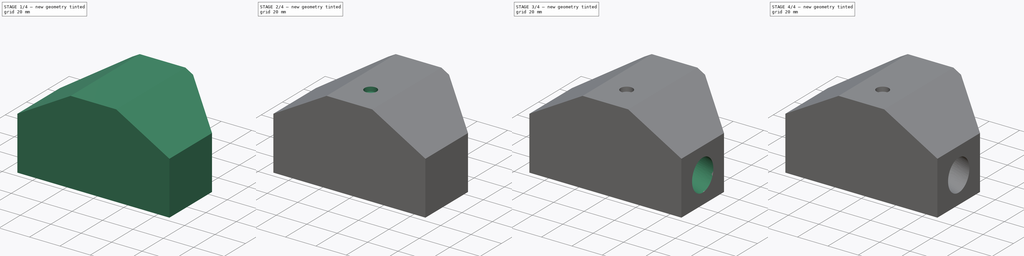
[diagram: build sequence overview — one tinted view per stage of 4, left to right]
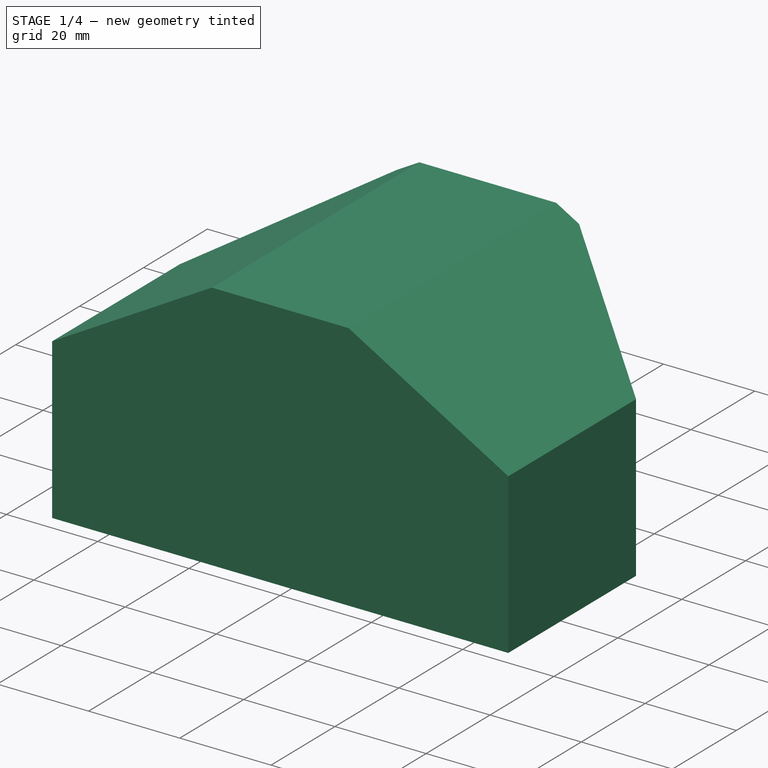
[diagram: stage 1 of 4 — iso view after this stage's code; geometry added in this stage tinted green]
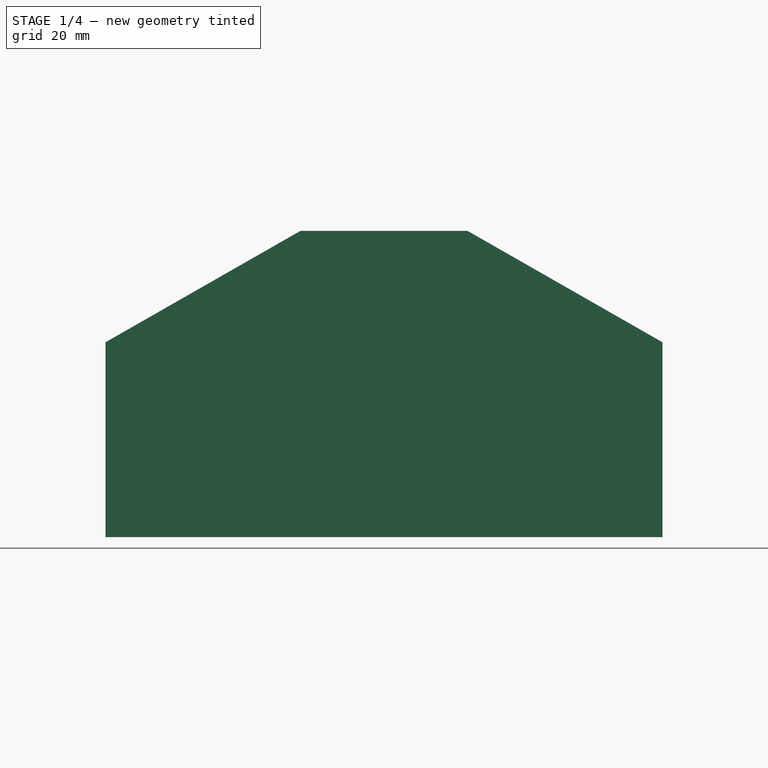
[diagram: stage 1 of 4 — front view after this stage's code; geometry added in this stage tinted green]
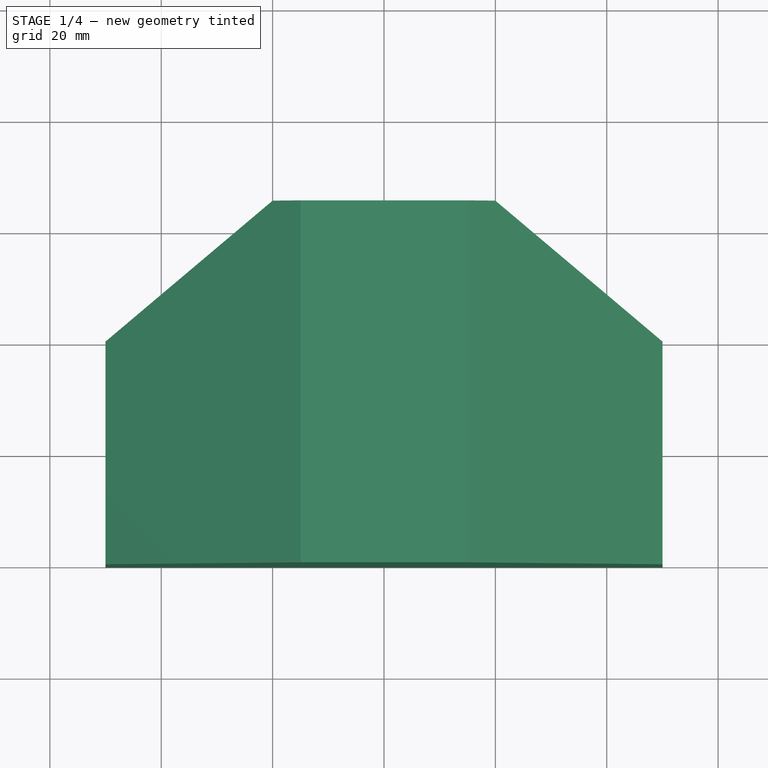
[diagram: stage 1 of 4 — top view after this stage's code; geometry added in this stage tinted green]
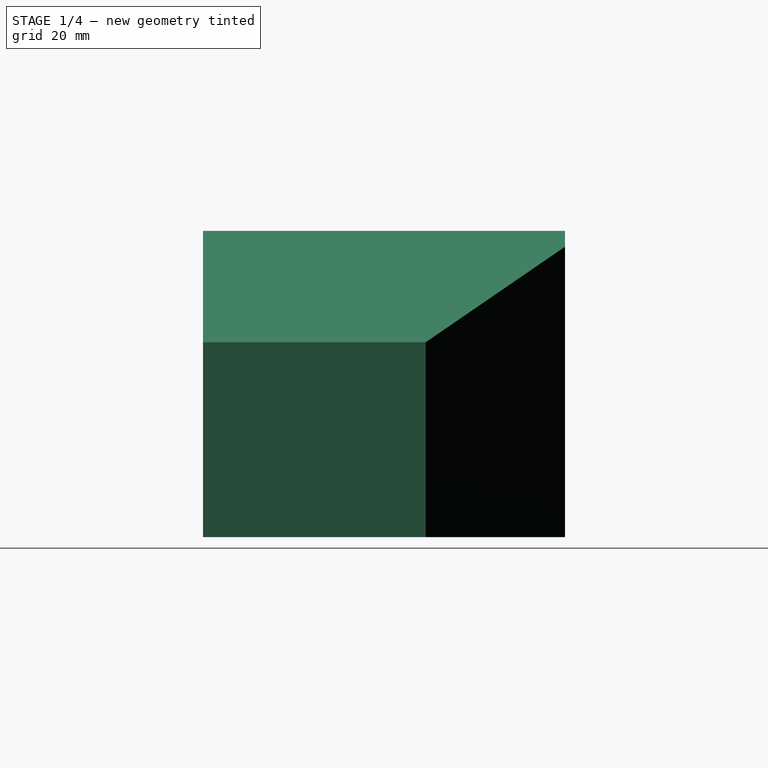
[diagram: stage 1 of 4 — right view after this stage's code; geometry added in this stage tinted green]
FCSTD DOCUMENT  (FreeCAD 0.17R13541 (Git))
Label: BabyGymJointHolder
License: All rights reserved
LicenseURL: http://en.wikipedia.org/wiki/All_rights_reserved
objects: Sketcher::SketchObject×8, PartDesign::Body×3, PartDesign::Pad×2, PartDesign::Pocket×2, Part::FeaturePython×2, PartDesign::AdditivePipe×1, PartDesign::Hole×1, Part::Extrusion×1, PartDesign::Boolean×1
note: 27 computed .brp shape members not serialized (recipe doc carries the construction recipe); baked Part::Feature solids carry a one-line shape summary decoded from their .brp

FEATURE [PartDesign::Body] Body001  label="Legs"
  Group = -> [Sketch002,Sketch003,AdditivePipe]
  Origin = -> Origin001
  Tip = -> AdditivePipe
FEATURE [Sketcher::SketchObject] Sketch004  label="SketchMain"
  AttachmentOffset = pos=(0,0,20) rot=(0,0,1;0rad)
  MapMode = 5
  Placement = pos=(0,-20,-2e-12) rot=(1,0,0;1.5708rad)
  Support = -> [XZ_Plane]
  sketch-geometry (8):
    g0: LineSegment StartX=-50 StartY=10 StartZ=0 EndX=-15 EndY=30 EndZ=0
    g1: LineSegment StartX=-15 StartY=30 StartZ=0 EndX=15 EndY=30 EndZ=0
    g2: LineSegment StartX=15 StartY=30 StartZ=0 EndX=50 EndY=10 EndZ=0
    g3: LineSegment StartX=50 StartY=10 StartZ=0 EndX=50 EndY=-25 EndZ=0
    g4: LineSegment StartX=50 StartY=-25 StartZ=0 EndX=15 EndY=-25 EndZ=0
    g5: LineSegment StartX=15 StartY=-25 StartZ=0 EndX=-15 EndY=-25 EndZ=0
    g6: LineSegment StartX=-15 StartY=-25 StartZ=0 EndX=-50 EndY=-25 EndZ=0
    g7: LineSegment StartX=-50 StartY=-25 StartZ=0 EndX=-50 EndY=10 EndZ=0
  constraints (23):
    c: Coincident(g0,g1)
    c: Horizontal(g1)
    c: Coincident(g1,g2)
    c: Coincident(g2,g3)
    c: Vertical(g3)
    c: Coincident(g3,g4)
    c: Coincident(g4,g5)
    c: Horizontal(g5)
    c: Coincident(g5,g6)
    c: Coincident(g6,g7)
    c: Coincident(g7,g0)
    c: Vertical(g7)
    c: DistanceX(g6,g3) = 100  'MainWidth'
    c: DistanceY(g3,g1) = 55
    c: Symmetric(g3,g6,g-2)
    c: Equal(g3,g7)
    c: Equal(g0,g2)
    c: Equal(g6,g4)
    c: DistanceY(g-1,g1) = 30
    c: DistanceY(g3,g3) = 35
    c: DistanceX(g1,g1) = 30
    c: Equal(g5,g1)
    c: DistanceY(g4,g1) = 55
FEATURE [PartDesign::Pad] Pad001  label="PadMain"
  Length = 65
  Length2 = 100
  Placement = pos=(0,0,0) rot=(1,0,0;1.5708rad)
  Profile = -> Sketch004
  Reversed = true
  Type = 0
FEATURE [Sketcher::SketchObject] Sketch005
  MapMode = 5
  Support = -> [XY_Plane]
  expr: Constraints[16] = PadMain.Length + SketchMain.Placement.Base.y
  expr: Constraints[15] = SketchMain.Constraints.MainWidth / 2
  sketch-geometry (6):
    g0: LineSegment StartX=-50 StartY=20 StartZ=0 EndX=-20 EndY=45 EndZ=0
    g1: LineSegment StartX=-20 StartY=45 StartZ=0 EndX=-50 EndY=45 EndZ=0
    g2: LineSegment StartX=-50 StartY=45 StartZ=0 EndX=-50 EndY=20 EndZ=0
    g3: LineSegment StartX=20 StartY=45 StartZ=0 EndX=50 EndY=45 EndZ=0
    g4: LineSegment StartX=50 StartY=45 StartZ=0 EndX=50 EndY=20 EndZ=0
    g5: LineSegment StartX=50 StartY=20 StartZ=0 EndX=20 EndY=45 EndZ=0
  constraints (17):
    c: Coincident(g0,g1)
    c: Horizontal(g1)
    c: Coincident(g1,g2)
    c: Coincident(g2,g0)
    c: Vertical(g2)
    c: Horizontal(g3)
    c: Coincident(g3,g4)
    c: Vertical(g4)
    c: Coincident(g4,g5)
    c: Coincident(g5,g3)
    c: DistanceY(g-1,g0) = 20
    c: DistanceX(g0,g-1) = 20
    c: Symmetric(g0,g3,g-2)
    c: Equal(g1,g3)
    c: Equal(g2,g4)
    c: DistanceX(g0,g-1) = 50
    c: DistanceY(g-1,g1) = 45
FEATURE [PartDesign::Pocket] Pocket
  BaseFeature = -> Pad001
  Length = 5
  Length2 = 100
  Midplane = true
  Placement = pos=(0,0,0) rot=(1,0,0;1.5708rad)
  Profile = -> Sketch005
  Type = 1
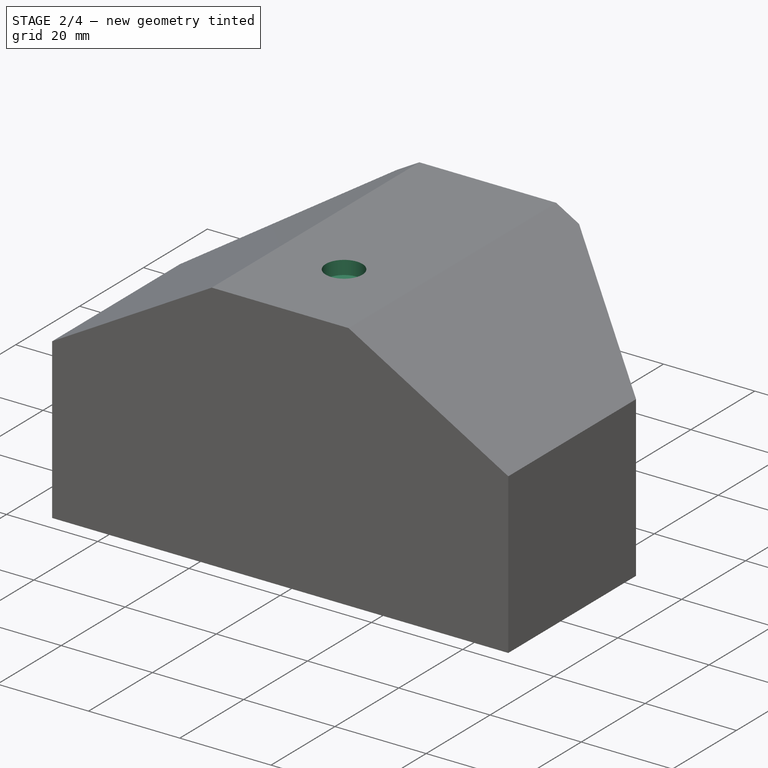
[diagram: stage 2 of 4 — iso view after this stage's code; geometry added in this stage tinted green]
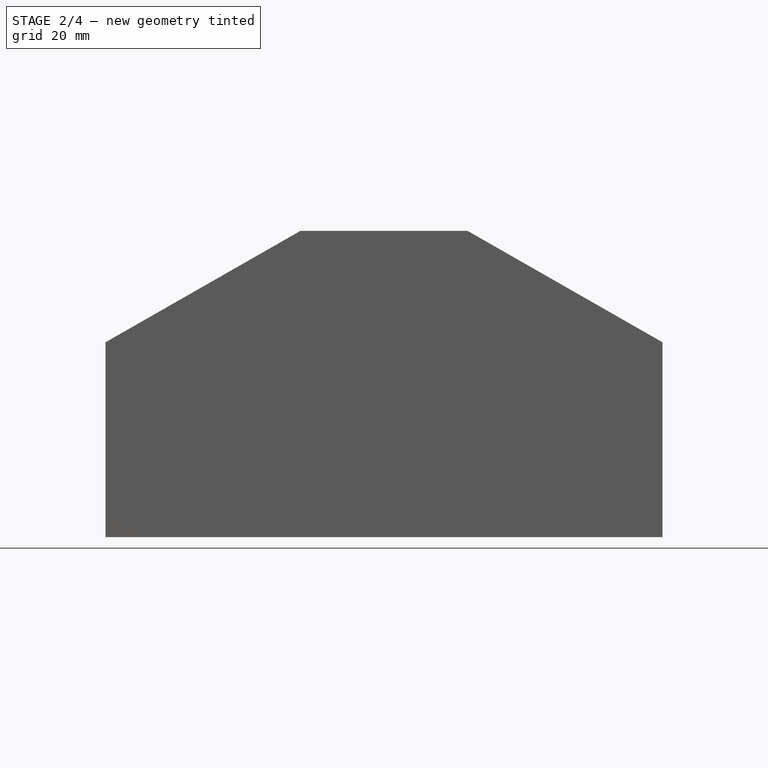
[diagram: stage 2 of 4 — front view after this stage's code; geometry added in this stage tinted green]
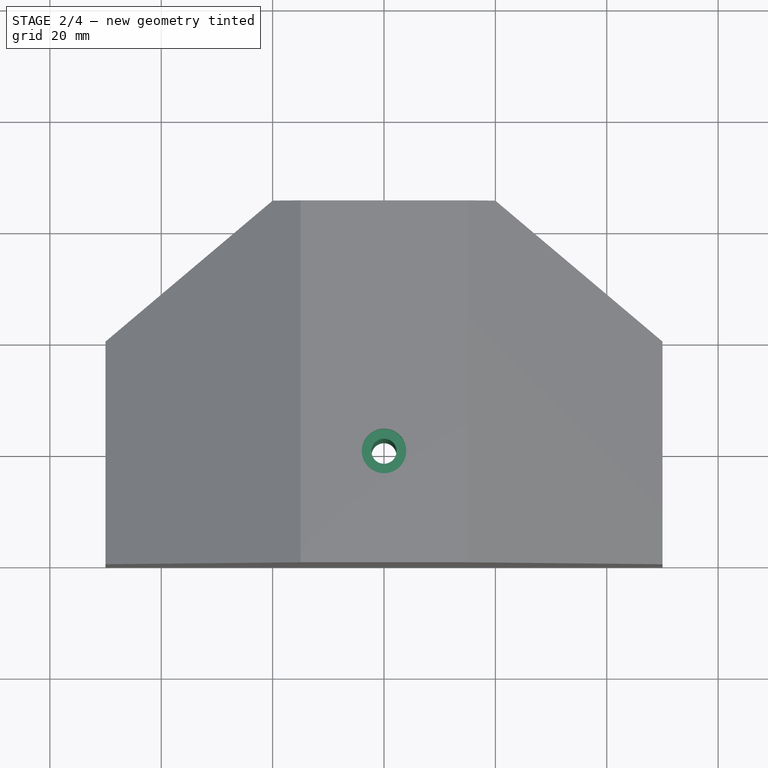
[diagram: stage 2 of 4 — top view after this stage's code; geometry added in this stage tinted green]
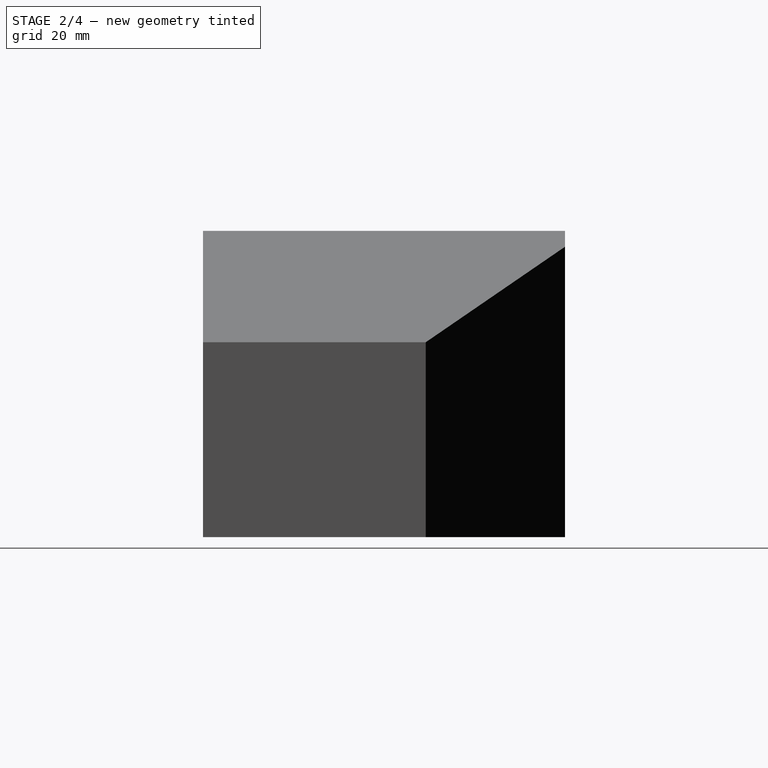
[diagram: stage 2 of 4 — right view after this stage's code; geometry added in this stage tinted green]
FEATURE [Sketcher::SketchObject] Sketch006
  MapMode = 5
  Placement = pos=(0,0,30) rot=(0,0,1;3.14159rad)
  Support = -> [Pocket]
  sketch-geometry (1):
    g0: Circle CenterX=0 CenterY=0 CenterZ=0 NormalX=0 NormalY=0 NormalZ=1 AngleXU=0 Radius=2.79854
  constraints (1):
    c: Coincident(g0,g-1)
FEATURE [PartDesign::Hole] Hole
  BaseFeature = -> Pocket
  Depth = 22
  DepthType = 1
  Diameter = 4.5
  DrillPoint = 0
  DrillPointAngle = 118
  HoleCutCountersinkAngle = 90
  HoleCutDepth = 3
  HoleCutDiameter = 8
  HoleCutType = 1
  ModelActualThread = false
  Placement = pos=(0,0,0) rot=(1,0,0;1.5708rad)
  Profile = -> Sketch006
  Tapered = false
  TaperedAngle = 90
  ThreadAngle = 0
  ThreadClass = 0
  ThreadCutOffInner = 0
  ThreadCutOffOuter = 0
  ThreadDirection = 0
  ThreadFit = 0
  ThreadPitch = 0
  ThreadSize = 0
  ThreadType = 0
  Threaded = false
FEATURE [Sketcher::SketchObject] Sketch007
  MapMode = 5
  Placement = pos=(0,0,-25) rot=(1,0,0;3.14159rad)
  Support = -> [Hole]
  sketch-geometry (7):
    g0: LineSegment StartX=2.07846 StartY=-3.6 StartZ=0 EndX=4.15692 EndY=0 EndZ=0
    g1: LineSegment StartX=4.15692 StartY=0 StartZ=0 EndX=2.07846 EndY=3.6 EndZ=0
    g2: LineSegment StartX=2.07846 StartY=3.6 StartZ=0 EndX=-2.07846 EndY=3.6 EndZ=0
    g3: LineSegment StartX=-2.07846 StartY=3.6 StartZ=0 EndX=-4.15692 EndY=0 EndZ=0
    g4: LineSegment StartX=-4.15692 StartY=0 StartZ=0 EndX=-2.07846 EndY=-3.6 EndZ=0
    g5: LineSegment StartX=-2.07846 StartY=-3.6 StartZ=0 EndX=2.07846 EndY=-3.6 EndZ=0
    g6: Circle [constr] CenterX=0 CenterY=0 CenterZ=0 NormalX=0 NormalY=0 NormalZ=1 AngleXU=0 Radius=4.15692
  constraints (16):
    c: Coincident(g0,g1)
    c: Coincident(g1,g2)
    c: Coincident(g2,g3)
    c: Coincident(g3,g4)
    c: Coincident(g4,g5)
    c: Coincident(g5,g0)
    c: Equal(g0, g1-g5) x5
    c: PointOnObject(g0,g6)
    c: PointOnObject(g1,g6)
    c: PointOnObject(g2,g6)
    c: PointOnObject(g3,g6)
    c: PointOnObject(g4,g6)
    c: PointOnObject(g5,g6)
    c: Coincident(g6,g-1)
    c: Horizontal(g2)
    c: DistanceY(g4,g2) = 7.2
FEATURE [PartDesign::Pocket] Pocket001
  BaseFeature = -> Hole
  Length = 5
  Length2 = 100
  Placement = pos=(0,0,0) rot=(1,0,0;1.5708rad)
  Profile = -> Sketch007
  Type = 0
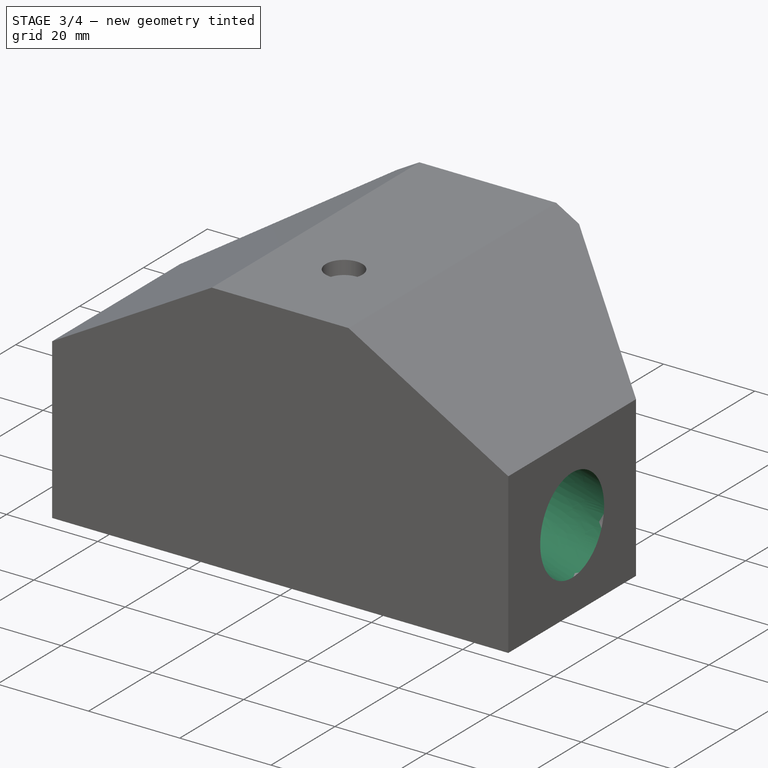
[diagram: stage 3 of 4 — iso view after this stage's code; geometry added in this stage tinted green]
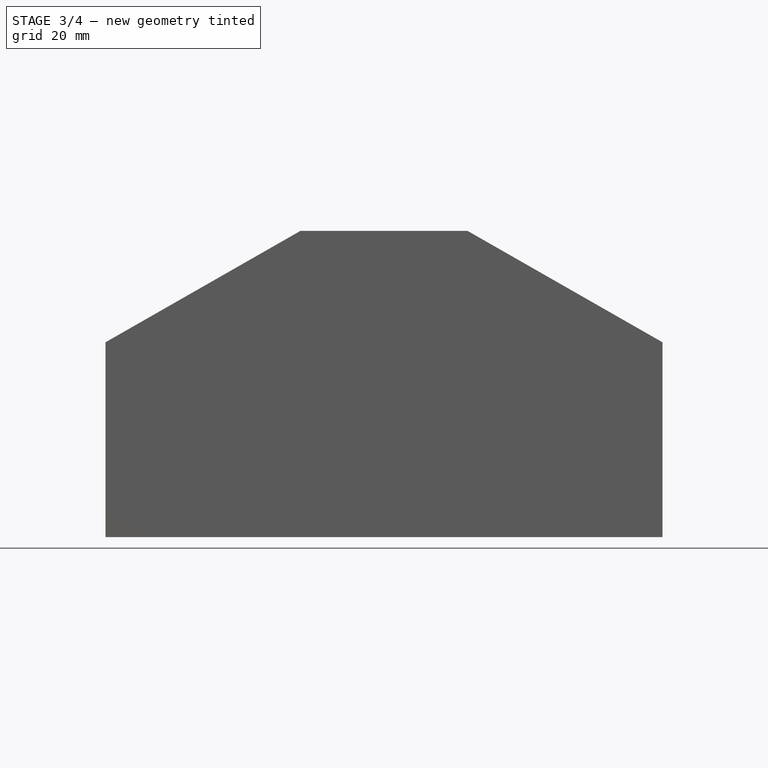
[diagram: stage 3 of 4 — front view after this stage's code; geometry added in this stage tinted green]
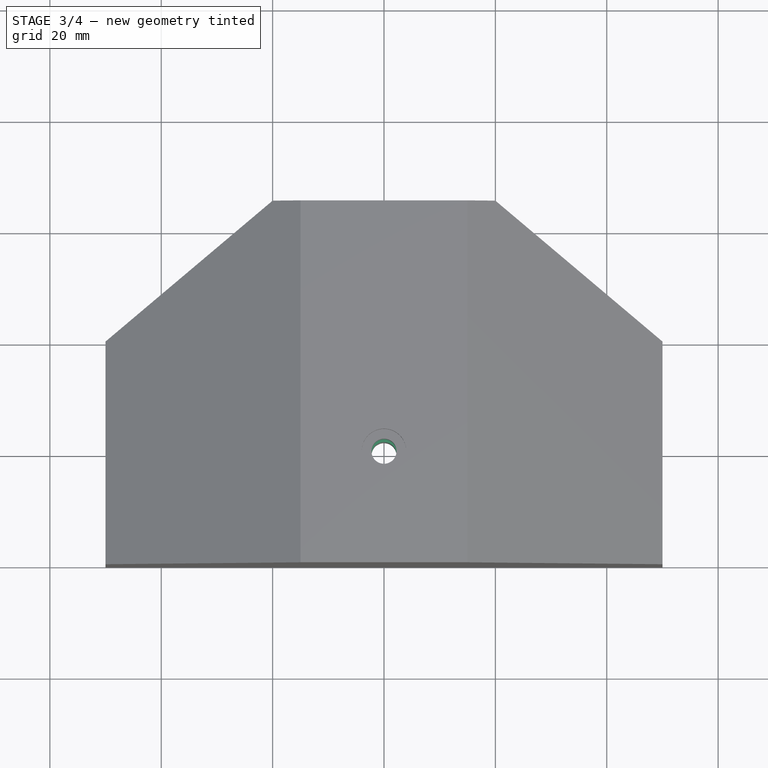
[diagram: stage 3 of 4 — top view after this stage's code; geometry added in this stage tinted green]
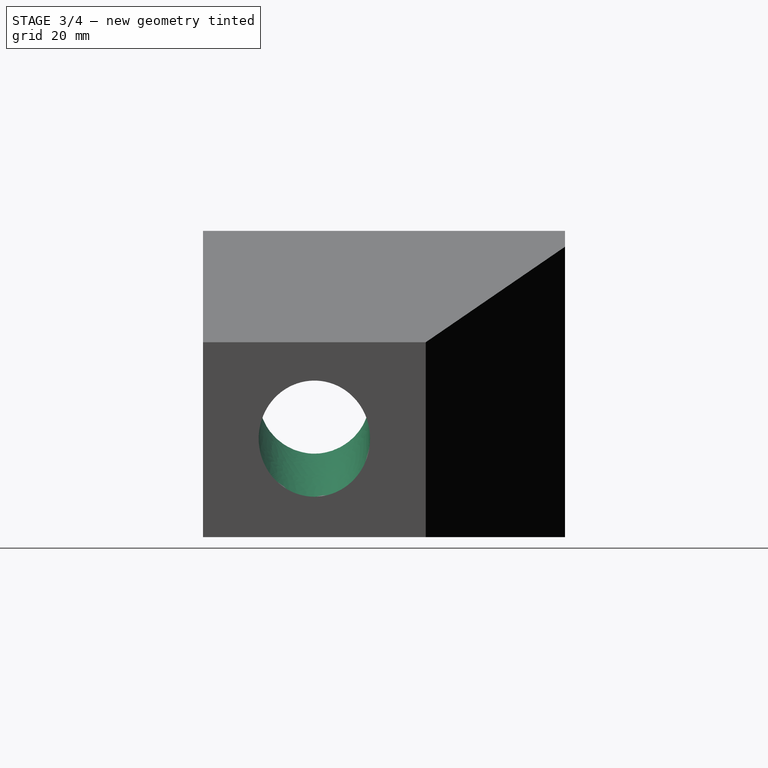
[diagram: stage 3 of 4 — right view after this stage's code; geometry added in this stage tinted green]
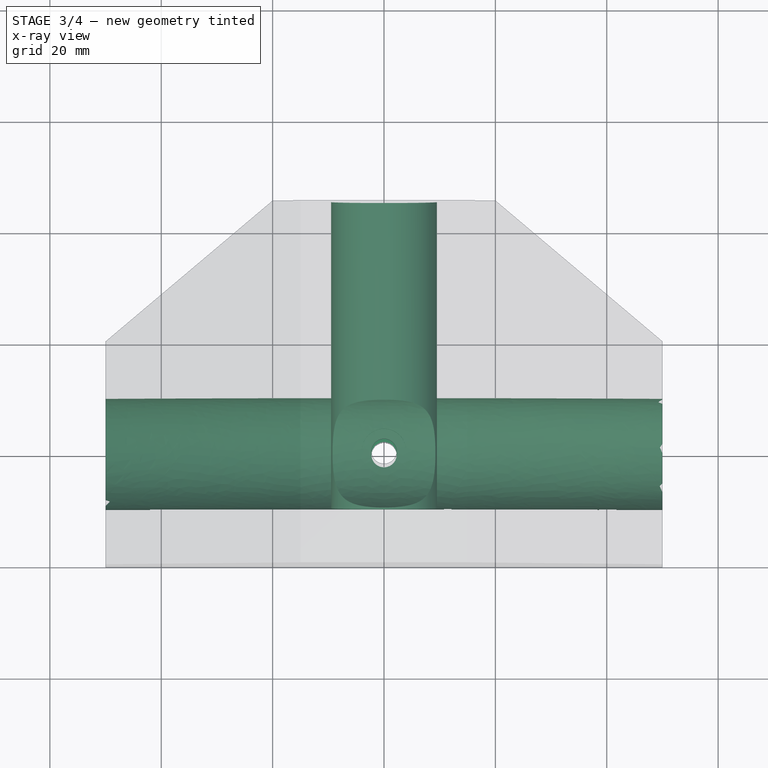
[diagram: stage 3 of 4 — x-ray composite at the top view; earlier geometry ghosted, this stage's added geometry solid]
FEATURE [Sketcher::SketchObject] Sketch002  label="legSketch"
  MapMode = 5
  Placement = pos=(0,0,0) rot=(0.57735,0.57735,0.57735;2.0944rad)
  Support = -> [YZ_Plane001]
  sketch-geometry (1):
    g0: Circle CenterX=0 CenterY=0 CenterZ=0 NormalX=0 NormalY=0 NormalZ=1 AngleXU=0 Radius=10
  constraints (2):
    c: Coincident(g0,g-1)
    c: Radius(g0) = 10  'lrad'
FEATURE [Sketcher::SketchObject] Sketch
  MapMode = 5
  Placement = pos=(0,0,0) rot=(1,0,0;1.5708rad)
  Support = -> [XZ_Plane002]
  sketch-geometry (1):
    g0: Circle CenterX=0 CenterY=12 CenterZ=0 NormalX=0 NormalY=0 NormalZ=1 AngleXU=0 Radius=9.5
  constraints (3):
    c: PointOnObject(g0,g-2)
    c: DistanceY(g-1,g0) = 12
    c: Radius(g0) = 9.5  'barRad'
FEATURE [PartDesign::Pad] Pad
  Length = 100
  Length2 = 100
  Placement = pos=(0,0,0) rot=(1,0,0;1.5708rad)
  Profile = -> Sketch
  Reversed = true
  Type = 0
FEATURE [PartDesign::Body] Body002  label="bar"
  Group = -> [Sketch,Pad]
  Origin = -> Origin002
  Placement = pos=(0,-10,0) rot=(0,0,1;0rad)
  Tip = -> Pad
  expr: Placement.Base.y = -legSketch.Constraints.lrad
FEATURE [Sketcher::SketchObject] Sketch003
  MapMode = 5
  Placement = pos=(0,0,0) rot=(1,0,0;1.5708rad)
  Support = -> [XZ_Plane001]
  sketch-geometry (5):
    g0: ArcOfEllipse CenterX=0 CenterY=-470 CenterZ=0 NormalX=0 NormalY=0 NormalZ=1 MajorRadius=470 MinorRadius=285 AngleXU=1.5708 StartAngle=6.01689 EndAngle=6.54948
    g1: LineSegment [constr] StartX=0 StartY=0 StartZ=0 EndX=0 EndY=-940 EndZ=0
    g2: LineSegment [constr] StartX=-285 StartY=-470 StartZ=0 EndX=285 EndY=-470 EndZ=0
    g3: GeomPoint X=0 Y=-96.2688 Z=0
    g4: GeomPoint X=0 Y=-843.731 Z=0
  constraints (7):
    c: InternalAlignment(g1-g4 -> g0) x4
    c: Horizontal(g0,g0)
    c: Coincident(g1,g-1)
    c: Horizontal(g2,g2)
    c: DistanceX(g2,g2) = 570
    c: DistanceY(g0,g-1) = 470
    c: DistanceX(g0,g0) = 150
FEATURE [PartDesign::AdditivePipe] AdditivePipe
  AuxilleryCurvelinear = true
  AuxillerySpineTangent = false
  Binormal = (0,0,0)
  Mode = 0
  Placement = pos=(0,0,0) rot=(0.57735,0.57735,0.57735;2.0944rad)
  Profile = -> Sketch002
  Spine = -> Sketch003 [Edge1]
  SpineTangent = false
  Transformation = 0
  Transition = 0
FEATURE [Sketcher::SketchObject] Sketch008
  MapMode = 5
  Placement = pos=(0,0,0) rot=(1,0,0;1.5708rad)
  Support = -> [XZ_Plane]
  sketch-geometry (5):
    g0: ArcOfEllipse CenterX=0 CenterY=-470 CenterZ=0 NormalX=0 NormalY=0 NormalZ=1 MajorRadius=470 MinorRadius=285 AngleXU=1.5708 StartAngle=6.01689 EndAngle=6.54948
    g1: LineSegment [constr] StartX=0 StartY=0 StartZ=0 EndX=0 EndY=-940 EndZ=0
    g2: LineSegment [constr] StartX=-285 StartY=-470 StartZ=0 EndX=285 EndY=-470 EndZ=0
    g3: GeomPoint X=0 Y=-96.2688 Z=0
    g4: GeomPoint X=0 Y=-843.731 Z=0
  constraints (7):
    c: InternalAlignment(g1-g4 -> g0) x4
    c: Horizontal(g0,g0)
    c: Coincident(g1,g-1)
    c: Horizontal(g2,g2)
    c: DistanceX(g2,g2) = 570
    c: DistanceY(g0,g-1) = 470
    c: DistanceX(g0,g0) = 150
FEATURE [Part::Extrusion] Extrude
  Base = -> Sketch008
  Dir = (0,-1,0)
  DirMode = 2
  FaceMakerClass = Part::FaceMakerBullseye
  LengthFwd = 100
  LengthRev = 0
  Solid = false
  Symmetric = true
FEATURE [PartDesign::Boolean] Boolean
  BaseFeature = -> Pocket001
  Group = -> [Body002,Body001]
  Type = 1
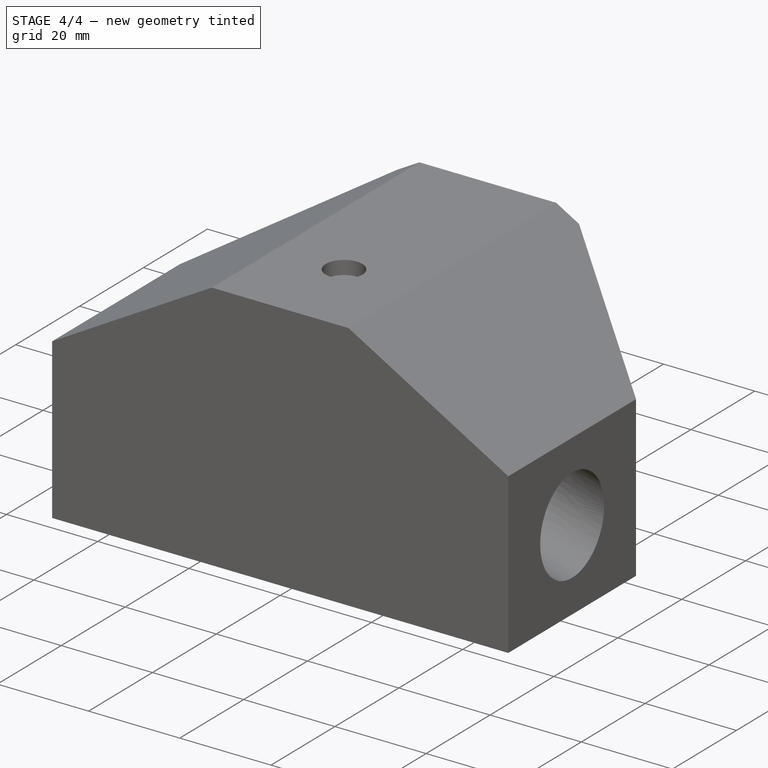
[diagram: stage 4 of 4 — iso view after this stage's code; geometry added in this stage tinted green]
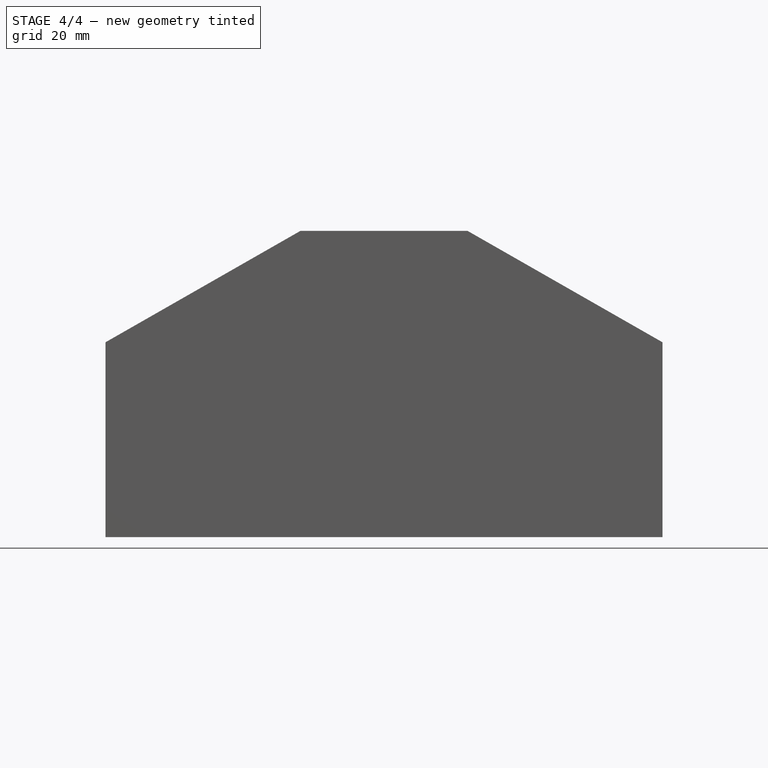
[diagram: stage 4 of 4 — front view after this stage's code; geometry added in this stage tinted green]
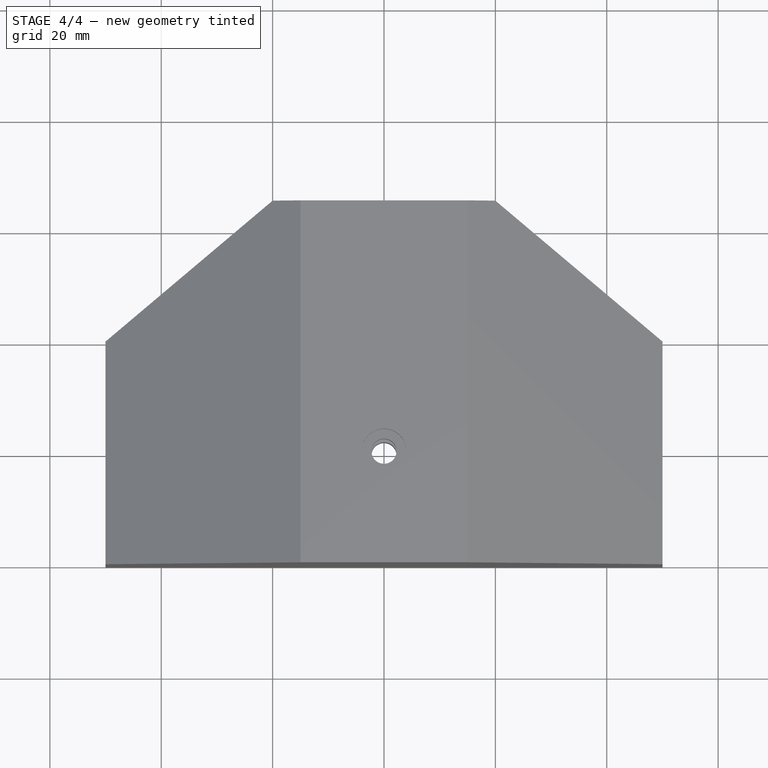
[diagram: stage 4 of 4 — top view after this stage's code; geometry added in this stage tinted green]
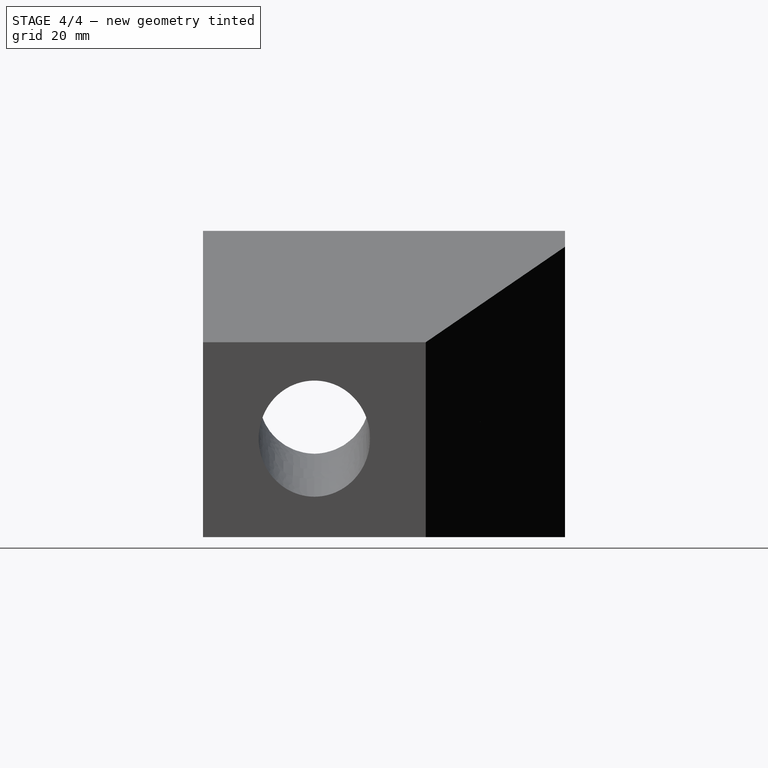
[diagram: stage 4 of 4 — right view after this stage's code; geometry added in this stage tinted green]
FEATURE [PartDesign::Body] Body  label="Main"
  Group = -> [Sketch004,Pad001,Sketch005,Pocket,Sketch006,Hole,Sketch007,Pocket001,Sketch008,Boolean]
  Origin = -> Origin
  Tip = -> Boolean
FEATURE [Part::FeaturePython] Slice  # WARN: FeaturePython — macro-defined, semantics opaque (R4)
  Base = -> Body
  Mode = 1
  Tolerance = 0
  Tools = -> [Extrude]
FEATURE [Part::FeaturePython] CompoundFilter  # WARN: FeaturePython — macro-defined, semantics opaque (R4)
  Base = -> Slice
  FilterType = 1
  Invert = false
  OverrideMaxVal = 0
  WindowFrom = 80
  WindowTo = 100
  items = 0;1
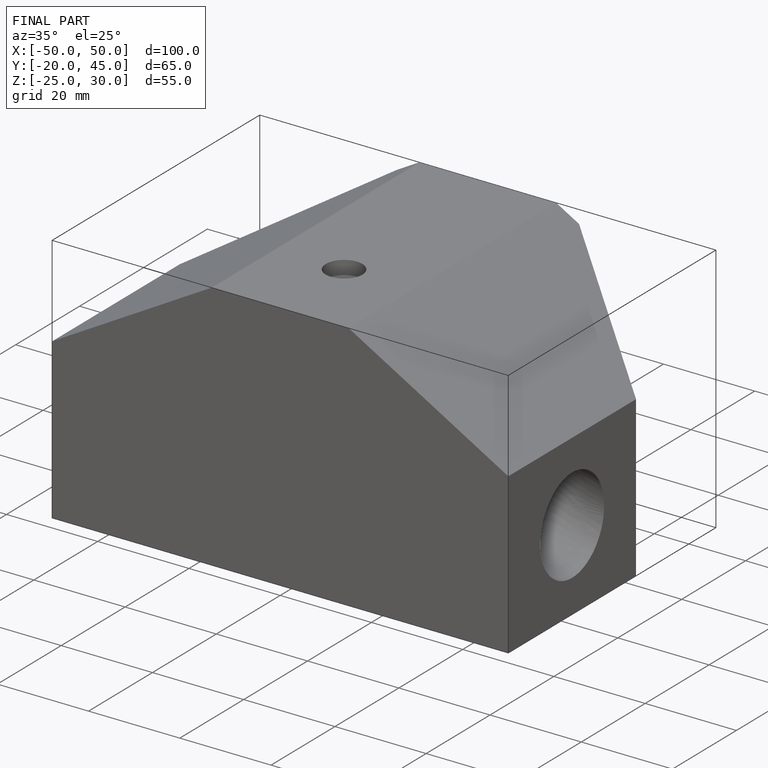
[diagram: finished part — iso view with bounding-box wireframe]
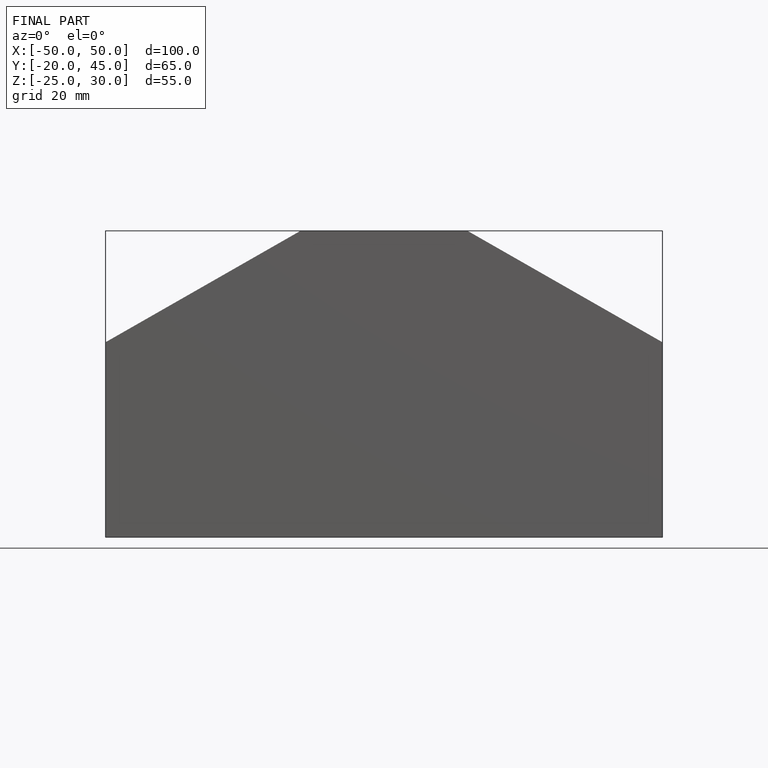
[diagram: finished part — front view with bounding-box wireframe]
